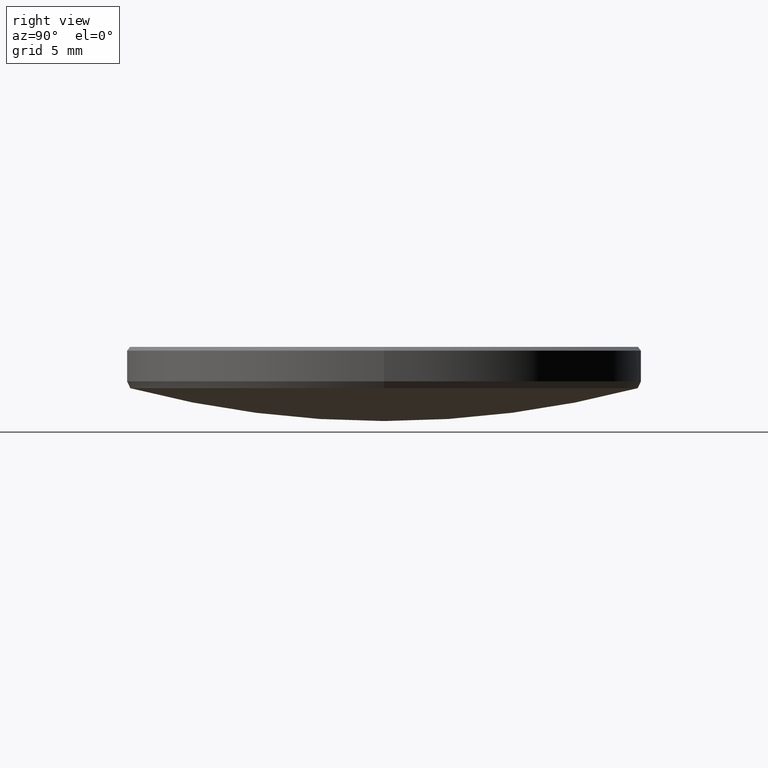
[diagram: clean part render]
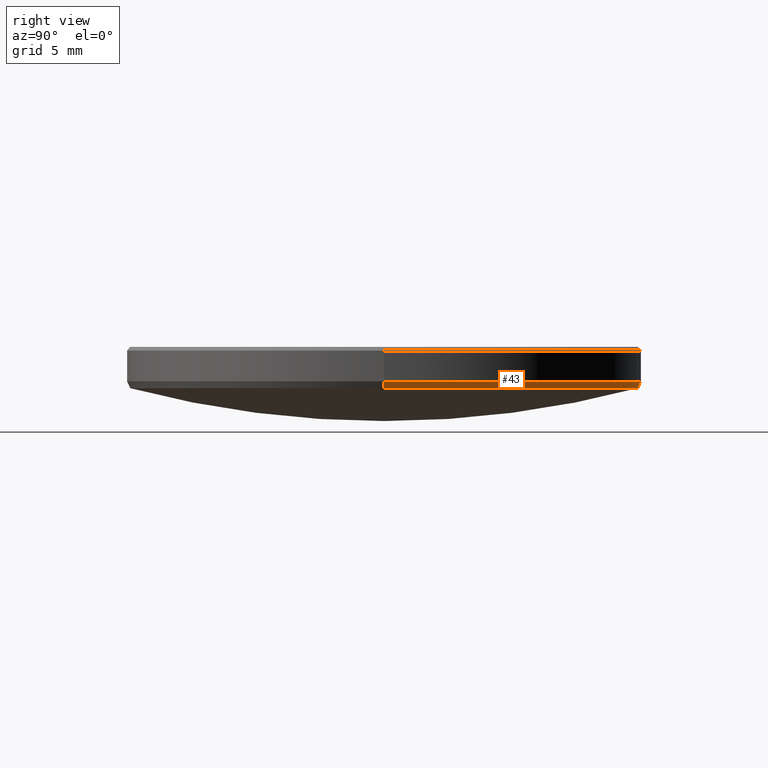
[diagram: same view with one face highlighted and labeled with its STEP entity id]
A machine part, right view. The second image highlights one B-rep face of the part: STEP entity #43.
In plain terms, the highlighted conical surface has half-angle 29.997 deg.
Its self-contained STEP definition (entity closure, byte-faithful):
#11 = DIRECTION ( 'NONE',  ( 1.000000000000000000, 0.000000000000000000, 0.000000000000000000 ) ) ;
#25 = AXIS2_PLACEMENT_3D ( 'NONE', #56, #67, #166 ) ;
#29 = DIRECTION ( 'NONE',  ( -1.000000000000000000, 0.000000000000000000, 0.000000000000000000 ) ) ;
#30 = CIRCLE ( 'NONE', #261, 12.50710445798774728 ) ;
#42 = CARTESIAN_POINT ( 'NONE',  ( -12.69999999999999929, 0.000000000000000000, 4.282866881517001900 ) ) ;
#43 = ADVANCED_FACE ( 'NONE', ( #240 ), #273, .T. ) ;
#56 = CARTESIAN_POINT ( 'NONE',  ( 0.000000000000000000, 0.000000000000000000, 3.948723936848863580 ) ) ;
#67 = DIRECTION ( 'NONE',  ( 0.000000000000000000, 0.000000000000000000, -1.000000000000000000 ) ) ;
#74 = EDGE_CURVE ( 'NONE', #277, #180, #324, .T. ) ;
#84 = LINE ( 'NONE', #159, #211 ) ;
#101 = EDGE_CURVE ( 'NONE', #234, #180, #212, .T. ) ;
#106 = EDGE_CURVE ( 'NONE', #256, #234, #84, .T. ) ;
#117 = DIRECTION ( 'NONE',  ( -0.4999572784161532835, 6.122710807227642125E-17, 0.8660500676974242085 ) ) ;
#118 = AXIS2_PLACEMENT_3D ( 'NONE', #138, #320, #241 ) ;
#126 = ORIENTED_EDGE ( 'NONE', *, *, #306, .F. ) ;
#129 = EDGE_LOOP ( 'NONE', ( #126, #251, #206, #315, #233 ) ) ;
#130 = VERTEX_POINT ( 'NONE', #316 ) ;
#132 = DIRECTION ( 'NONE',  ( -0.000000000000000000, -0.000000000000000000, 1.000000000000000000 ) ) ;
#138 = CARTESIAN_POINT ( 'NONE',  ( 0.000000000000000000, 0.000000000000000000, 4.282866881517001900 ) ) ;
#153 = VECTOR ( 'NONE', #117, 1000.000000000000000 ) ;
#158 = DIRECTION ( 'NONE',  ( 0.000000000000000000, 0.000000000000000000, -1.000000000000000000 ) ) ;
#159 = CARTESIAN_POINT ( 'NONE',  ( 12.69999999999999929, 0.000000000000000000, 4.282866881517001900 ) ) ;
#161 = CARTESIAN_POINT ( 'NONE',  ( -12.50710445798774728, 1.543489989512383738E-15, 3.948723936848863580 ) ) ;
#165 = DIRECTION ( 'NONE',  ( 0.4999572784161532835, 0.000000000000000000, 0.8660500676974242085 ) ) ;
#166 = DIRECTION ( 'NONE',  ( 1.000000000000000000, 0.000000000000000000, 0.000000000000000000 ) ) ;
#170 = CIRCLE ( 'NONE', #25, 12.50710445798774728 ) ;
#180 = VERTEX_POINT ( 'NONE', #42 ) ;
#188 = CARTESIAN_POINT ( 'NONE',  ( 0.000000000000000000, 0.000000000000000000, 3.948723936848863580 ) ) ;
#198 = CARTESIAN_POINT ( 'NONE',  ( 12.69999999999999929, 1.555301434917138433E-15, 4.282866881517001900 ) ) ;
#206 = ORIENTED_EDGE ( 'NONE', *, *, #101, .F. ) ;
#211 = VECTOR ( 'NONE', #165, 1000.000000000000000 ) ;
#212 = CIRCLE ( 'NONE', #291, 12.69999999999999929 ) ;
#233 = ORIENTED_EDGE ( 'NONE', *, *, #292, .F. ) ;
#234 = VERTEX_POINT ( 'NONE', #198 ) ;
#240 = FACE_OUTER_BOUND ( 'NONE', #129, .T. ) ;
#241 = DIRECTION ( 'NONE',  ( 1.000000000000000000, 0.000000000000000000, 0.000000000000000000 ) ) ;
#245 = CARTESIAN_POINT ( 'NONE',  ( -12.69999999999999929, 1.555301434917138433E-15, 4.282866881517001900 ) ) ;
#251 = ORIENTED_EDGE ( 'NONE', *, *, #74, .T. ) ;
#256 = VERTEX_POINT ( 'NONE', #331 ) ;
#261 = AXIS2_PLACEMENT_3D ( 'NONE', #188, #158, #11 ) ;
#265 = CARTESIAN_POINT ( 'NONE',  ( 0.000000000000000000, 0.000000000000000000, 4.282866881517001900 ) ) ;
#273 = CONICAL_SURFACE ( 'NONE', #118, 12.69999999999999929, 0.5235494456648849271 ) ;
#277 = VERTEX_POINT ( 'NONE', #161 ) ;
#291 = AXIS2_PLACEMENT_3D ( 'NONE', #265, #132, #29 ) ;
#292 = EDGE_CURVE ( 'NONE', #130, #256, #30, .T. ) ;
#306 = EDGE_CURVE ( 'NONE', #277, #130, #170, .T. ) ;
#315 = ORIENTED_EDGE ( 'NONE', *, *, #106, .F. ) ;
#316 = CARTESIAN_POINT ( 'NONE',  ( 0.000000000000000000, 12.50710445798775083, 3.948723936848860028 ) ) ;
#320 = DIRECTION ( 'NONE',  ( -0.000000000000000000, -0.000000000000000000, 1.000000000000000000 ) ) ;
#324 = LINE ( 'NONE', #245, #153 ) ;
#331 = CARTESIAN_POINT ( 'NONE',  ( 12.50710445798774728, 0.000000000000000000, 3.948723936848863580 ) ) ;